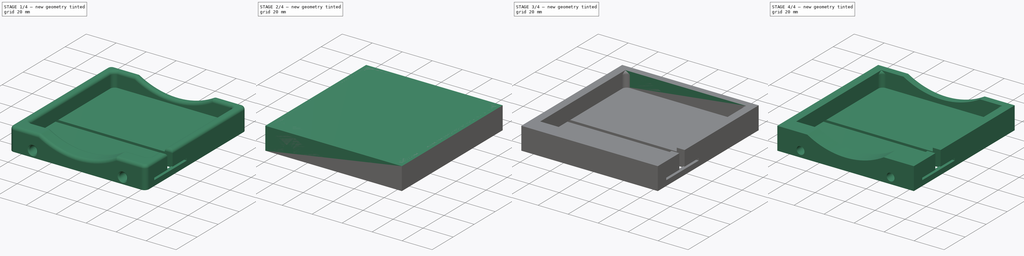
[diagram: build sequence overview — one tinted view per stage of 4, left to right]
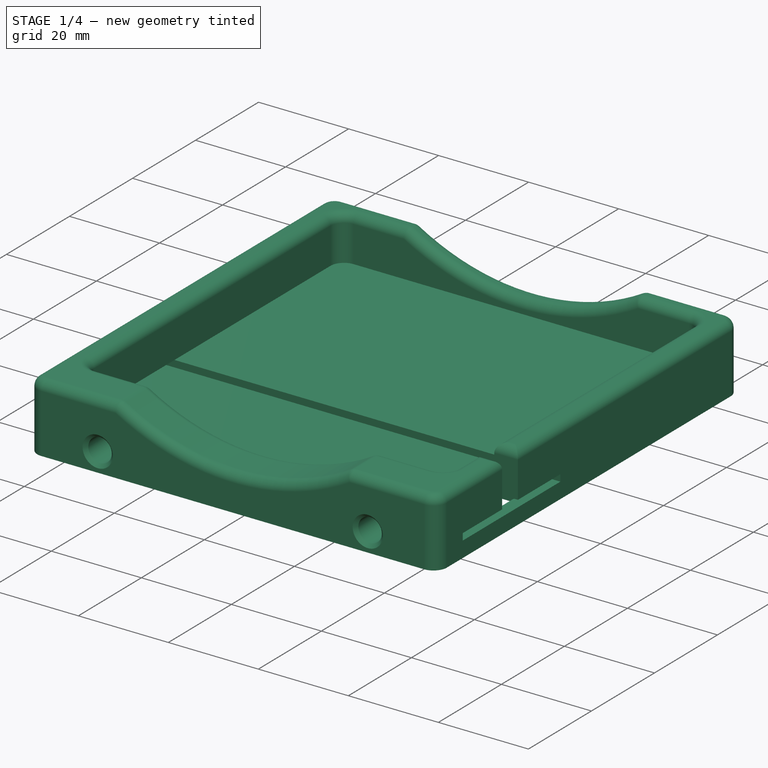
[diagram: stage 1 of 4 — iso view after this stage's code; geometry added in this stage tinted green]
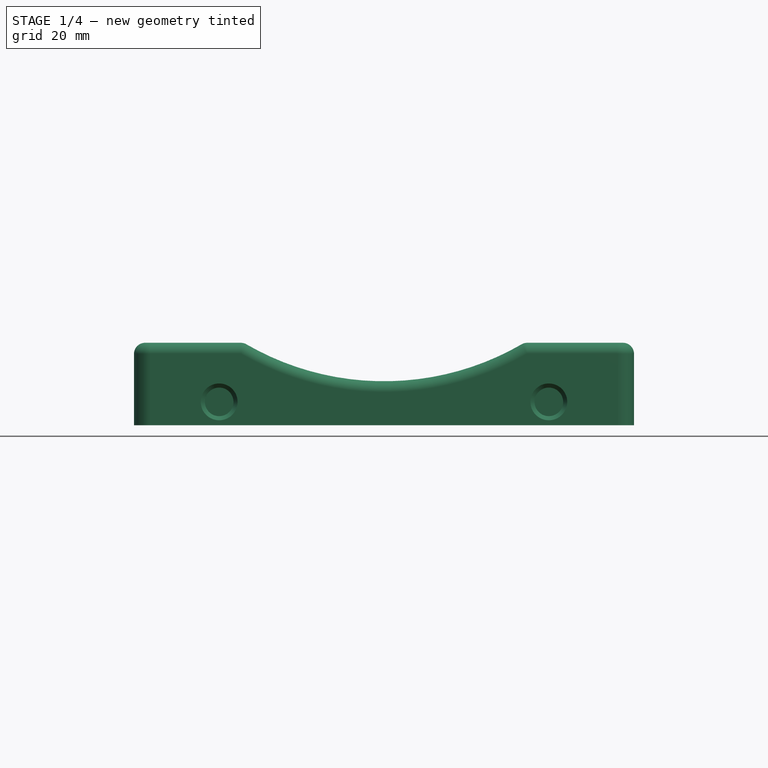
[diagram: stage 1 of 4 — front view after this stage's code; geometry added in this stage tinted green]
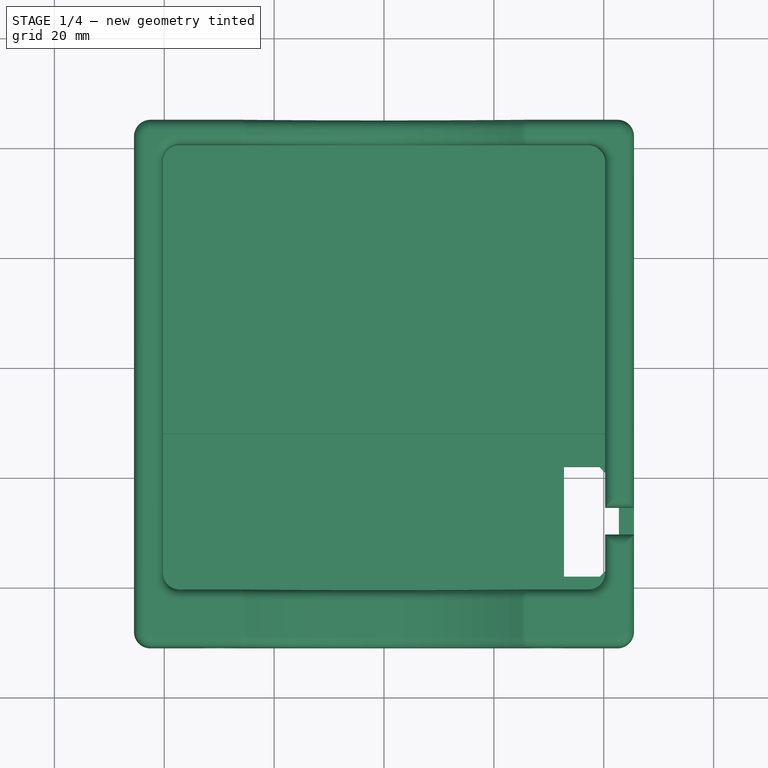
[diagram: stage 1 of 4 — top view after this stage's code; geometry added in this stage tinted green]
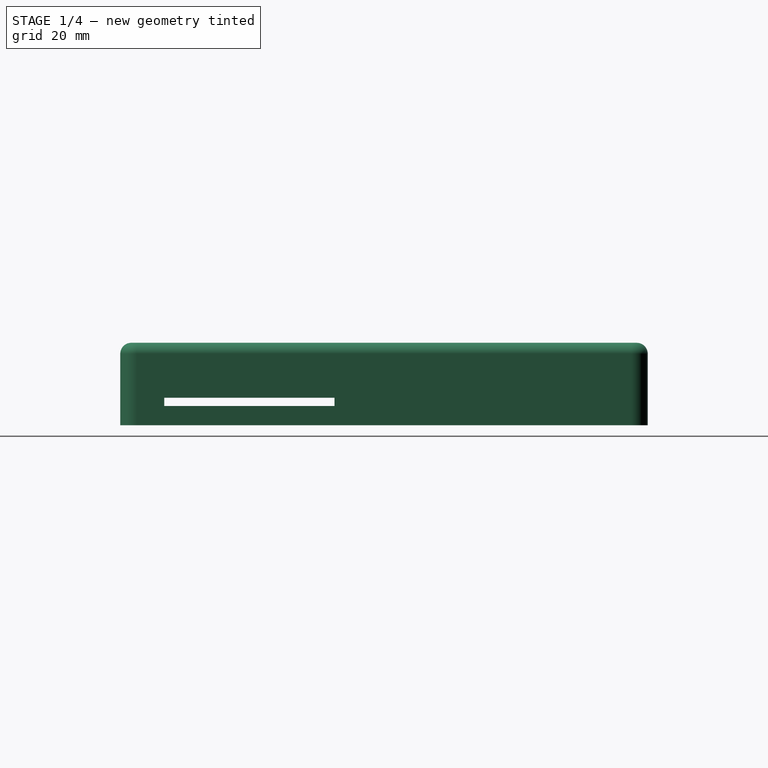
[diagram: stage 1 of 4 — right view after this stage's code; geometry added in this stage tinted green]
FCSTD DOCUMENT  (FreeCAD 0.17R7796 (Git))
Label: multi_length_fan_jig_80mm
License: CreativeCommons Attribution-ShareAlike
LicenseURL: http://creativecommons.org/licenses/by-sa/4.0/
objects: Sketcher::SketchObject×8, PartDesign::Pocket×6, PartDesign::Fillet×4, PartDesign::Pad×2, PartDesign::Body×1, Part::Feature×1, PartDesign::Chamfer×1
note: 31 computed .brp shape members not serialized (recipe doc carries the construction recipe); baked Part::Feature solids carry a one-line shape summary decoded from their .brp

FEATURE [PartDesign::Body] Body
  Model = -> [Sketch,Pad,Sketch001,Pocket,Sketch002,Pocket001,Sketch003,Pocket002,Sketch004,Pocket003,Sketch005,Pad001,Sketch006,Pocket004,Sketch007,Pocket005]
  Origin = -> BodyOrigin
  Tip = -> Pocket005
FEATURE [Part::Feature] Pocket005001  label="Pocket006"
  shape: bbox 91 x 96 x 15 mm, 41 faces (baked)
FEATURE [PartDesign::Fillet] Fillet
  Base = -> Pocket005001 [Edge30,Edge73,Edge6,Edge72,Edge69,Edge2,Edge76,Edge8]
  Radius = 3
FEATURE [PartDesign::Fillet] Fillet001
  Base = -> Fillet [Face5,Face26,Face36,Face6,Face7]
  Radius = 2
FEATURE [PartDesign::Chamfer] Chamfer
  Base = -> Fillet001 [Edge75,Edge74]
  Size = 0.75
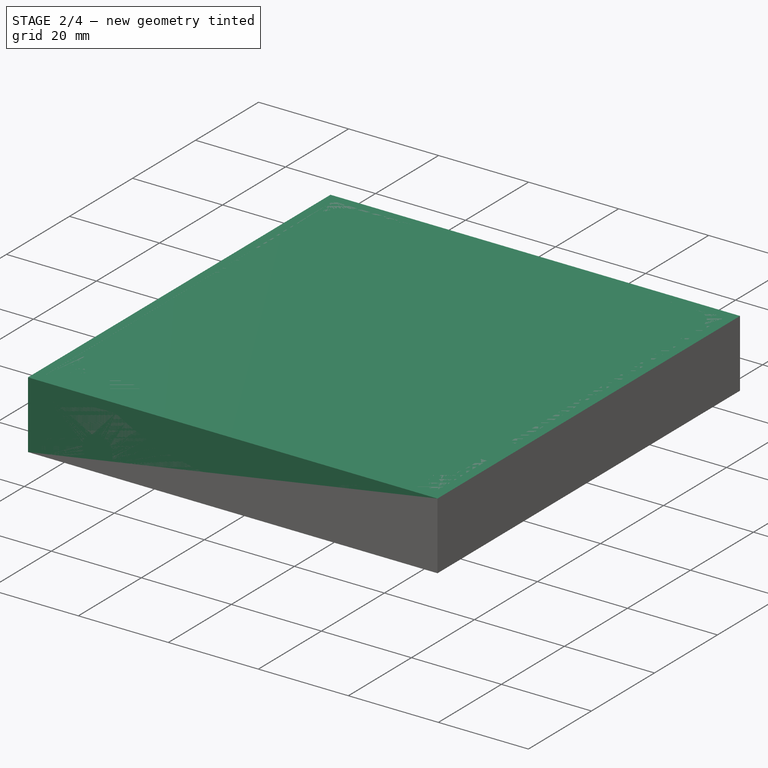
[diagram: stage 2 of 4 — iso view after this stage's code; geometry added in this stage tinted green]
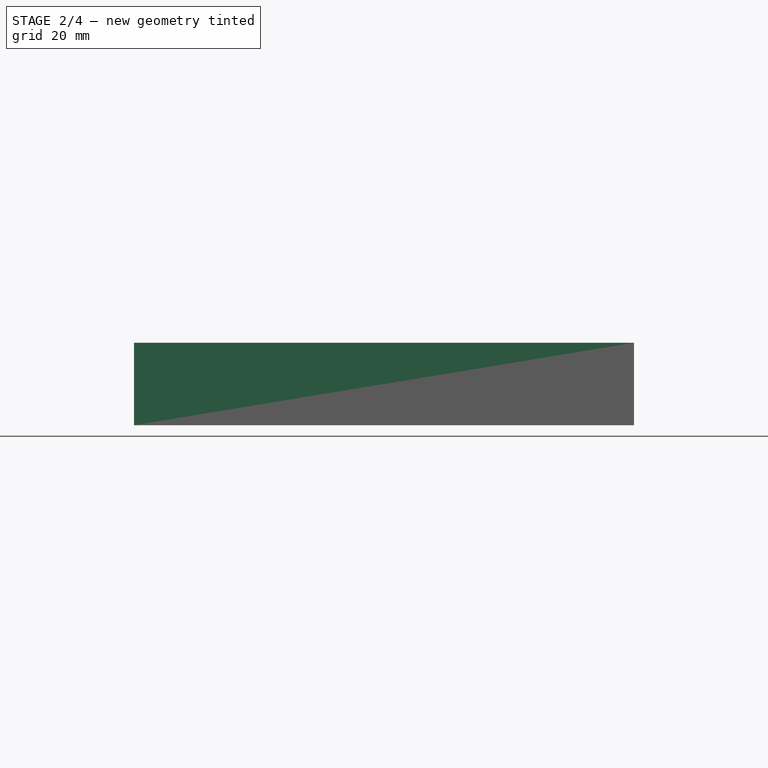
[diagram: stage 2 of 4 — front view after this stage's code; geometry added in this stage tinted green]
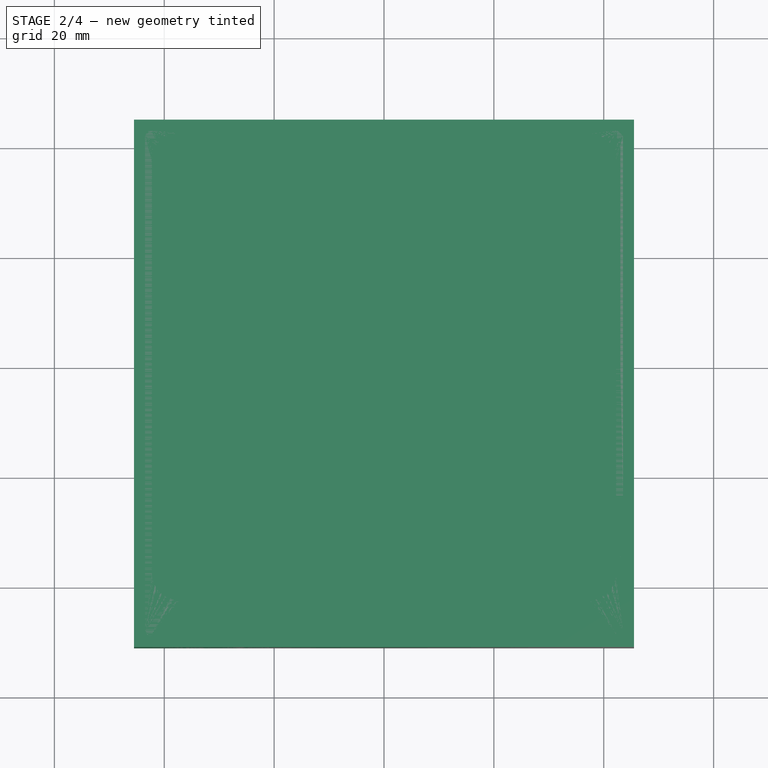
[diagram: stage 2 of 4 — top view after this stage's code; geometry added in this stage tinted green]
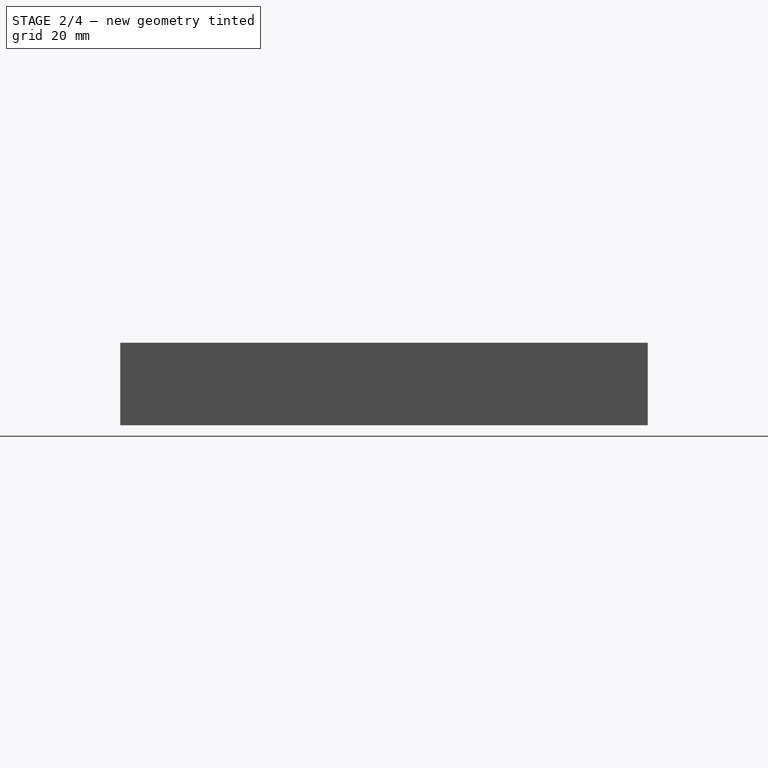
[diagram: stage 2 of 4 — right view after this stage's code; geometry added in this stage tinted green]
FEATURE [Sketcher::SketchObject] Sketch
  MapMode = 5
  Support = -> [XY_Plane]
  sketch-geometry (4):
    g0: LineSegment StartX=-45.5 StartY=45 StartZ=0 EndX=45.5 EndY=45 EndZ=0
    g1: LineSegment StartX=45.5 StartY=45 StartZ=0 EndX=45.5 EndY=-51 EndZ=0
    g2: LineSegment StartX=45.5 StartY=-51 StartZ=0 EndX=-45.5 EndY=-51 EndZ=0
    g3: LineSegment StartX=-45.5 StartY=-51 StartZ=0 EndX=-45.5 EndY=45 EndZ=0
  constraints (12):
    c: Coincident(g0,g1)
    c: Coincident(g1,g2)
    c: Coincident(g2,g3)
    c: Coincident(g3,g0)
    c: Horizontal(g0)
    c: Horizontal(g2)
    c: Vertical(g1)
    c: Vertical(g3)
    c: DistanceY(g3,g3) = 96
    c: DistanceX(g0,g0) = 91
    c: DistanceX(g0,g-1) = 45.5
    c: DistanceY(g-1,g0) = 45
FEATURE [PartDesign::Pad] Pad
  Length = 15
  Length2 = 100
  Profile = -> Sketch
  Type = 0
FEATURE [PartDesign::Fillet] Fillet002
  Base = -> Chamfer [Edge86,Edge104]
  Radius = 3
FEATURE [PartDesign::Fillet] Fillet003
  Base = -> Fillet002 [Edge35,Edge30,Edge22,Edge36,Edge43,Edge38]
  Radius = 1
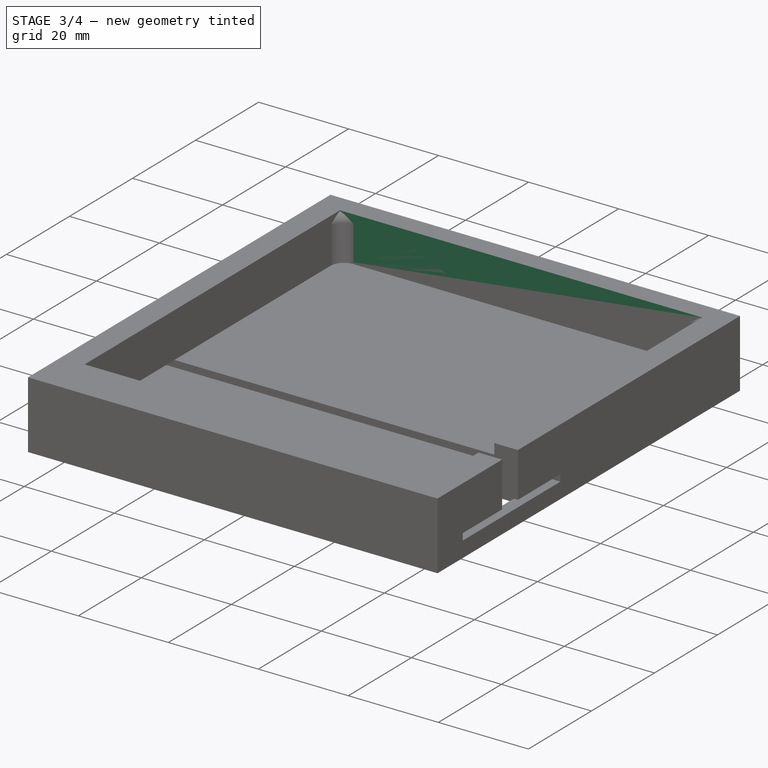
[diagram: stage 3 of 4 — iso view after this stage's code; geometry added in this stage tinted green]
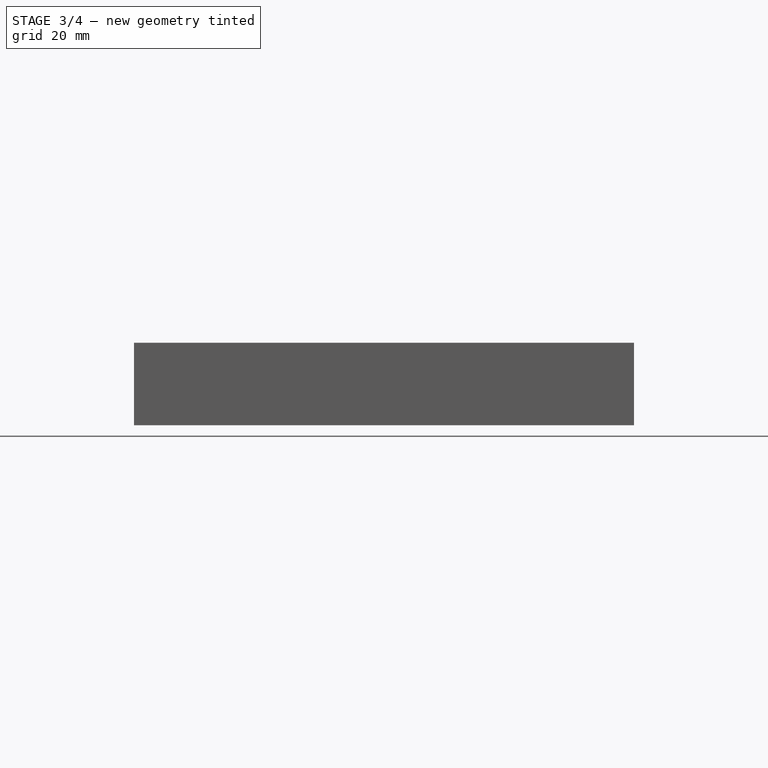
[diagram: stage 3 of 4 — front view after this stage's code; geometry added in this stage tinted green]
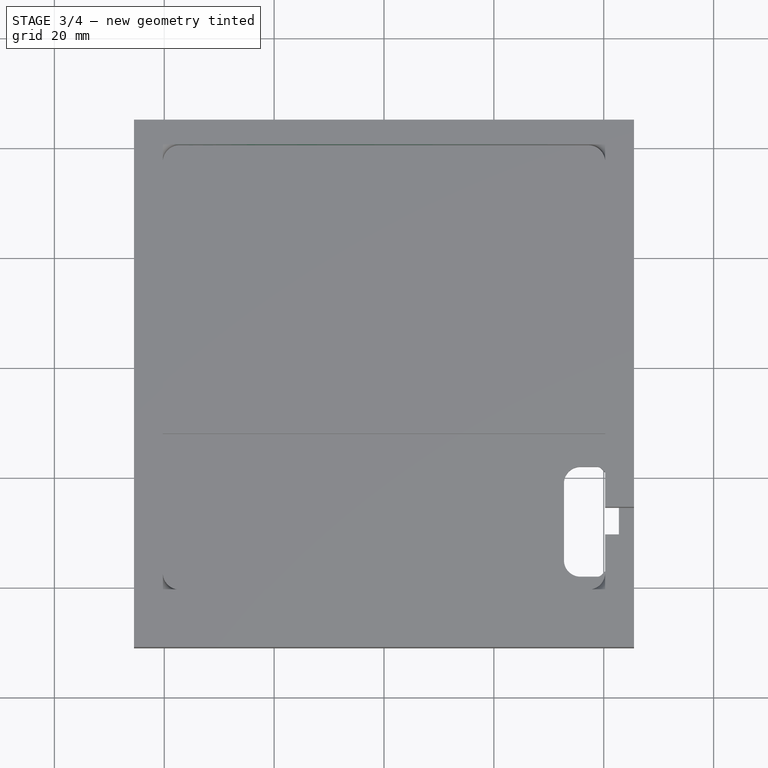
[diagram: stage 3 of 4 — top view after this stage's code; geometry added in this stage tinted green]
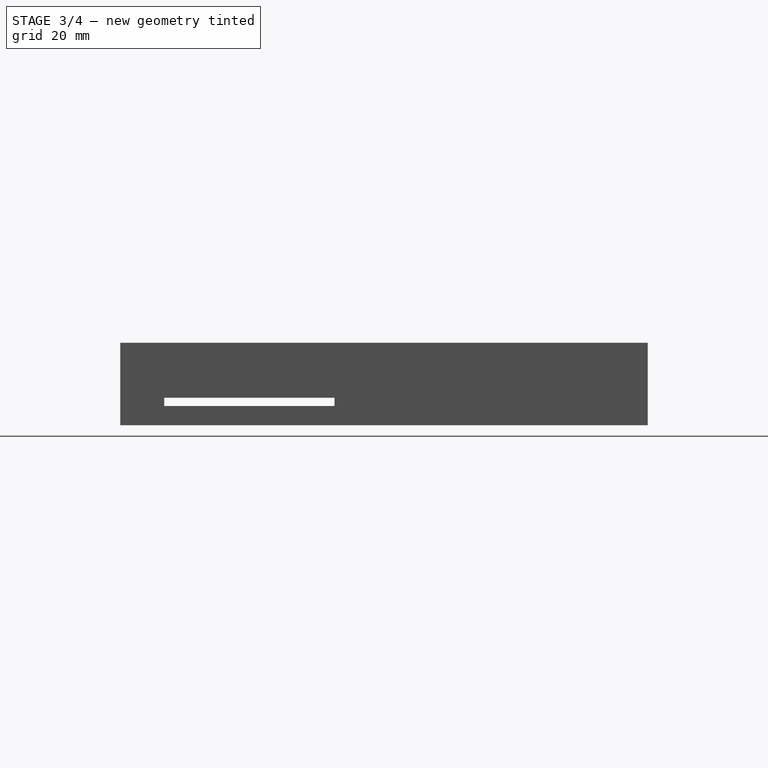
[diagram: stage 3 of 4 — right view after this stage's code; geometry added in this stage tinted green]
FEATURE [Sketcher::SketchObject] Sketch001
  MapMode = 5
  Placement = pos=(0,0,15) rot=(0,0,1;0rad)
  Support = -> [Pad]
  sketch-geometry (4):
    g0: LineSegment StartX=-40.25 StartY=40.5 StartZ=0 EndX=40.25 EndY=40.5 EndZ=0
    g1: LineSegment StartX=40.25 StartY=40.5 StartZ=0 EndX=40.25 EndY=-40.5 EndZ=0
    g2: LineSegment StartX=40.25 StartY=-40.5 StartZ=0 EndX=-40.25 EndY=-40.5 EndZ=0
    g3: LineSegment StartX=-40.25 StartY=-40.5 StartZ=0 EndX=-40.25 EndY=40.5 EndZ=0
  constraints (12):
    c: Coincident(g0,g1)
    c: Coincident(g1,g2)
    c: Coincident(g2,g3)
    c: Coincident(g3,g0)
    c: Horizontal(g0)
    c: Horizontal(g2)
    c: Vertical(g1)
    c: Vertical(g3)
    c: DistanceY(g3,g3) = 81
    c: DistanceX(g0,g0) = 80.5
    c: DistanceY(g-1,g0) = 40.5
    c: DistanceX(g0,g-1) = 40.25
FEATURE [PartDesign::Pocket] Pocket
  BaseFeature = -> Pad
  Length = 10
  Profile = -> Sketch001
  Type = 0
FEATURE [Sketcher::SketchObject] Sketch002
  ExternalGeometry = -> [Pocket]
  MapMode = 5
  Placement = pos=(0,0,15) rot=(0,0,1;0rad)
  Support = -> [Pocket]
  sketch-geometry (4):
    g0: LineSegment StartX=40.25 StartY=-25.5 StartZ=0 EndX=45.5 EndY=-25.5 EndZ=0
    g1: LineSegment StartX=45.5 StartY=-25.5 StartZ=0 EndX=45.5 EndY=-30.5 EndZ=0
    g2: LineSegment StartX=45.5 StartY=-30.5 StartZ=0 EndX=40.25 EndY=-30.5 EndZ=0
    g3: LineSegment StartX=40.25 StartY=-30.5 StartZ=0 EndX=40.25 EndY=-25.5 EndZ=0
  constraints (12):
    c: Coincident(g0,g1)
    c: Coincident(g1,g2)
    c: Coincident(g2,g3)
    c: Coincident(g3,g0)
    c: Horizontal(g0)
    c: Horizontal(g2)
    c: Vertical(g1)
    c: Vertical(g3)
    c: DistanceY(g1,g1) = 5
    c: DistanceY(g-3,g0) = 15
    c: PointOnObject(g2,g-4)
    c: PointOnObject(g1,g-5)
FEATURE [PartDesign::Pocket] Pocket001
  BaseFeature = -> Pocket
  Length = 10
  Profile = -> Sketch002
  Type = 0
FEATURE [Sketcher::SketchObject] Sketch003
  ExternalGeometry = -> [Pocket001]
  MapMode = 5
  Placement = pos=(45.5,0,0) rot=(0.57735,0.57735,0.57735;2.0944rad)
  Support = -> [Pocket001]
  sketch-geometry (4):
    g0: LineSegment StartX=-43 StartY=5 StartZ=0 EndX=-12 EndY=5 EndZ=0
    g1: LineSegment StartX=-12 StartY=5 StartZ=0 EndX=-12 EndY=3.5 EndZ=0
    g2: LineSegment StartX=-12 StartY=3.5 StartZ=0 EndX=-43 EndY=3.5 EndZ=0
    g3: LineSegment StartX=-43 StartY=3.5 StartZ=0 EndX=-43 EndY=5 EndZ=0
  constraints (12):
    c: Coincident(g0,g1)
    c: Coincident(g1,g2)
    c: Coincident(g2,g3)
    c: Coincident(g3,g0)
    c: Horizontal(g0)
    c: Horizontal(g2)
    c: Vertical(g1)
    c: Vertical(g3)
    c: PointOnObject(g-3,g0)
    c: DistanceY(g3,g3) = 1.5
    c: DistanceX(g2,g2) = 31
    c: DistanceX(g1,g-1) = 12
FEATURE [PartDesign::Pocket] Pocket002
  BaseFeature = -> Pocket001
  Length = 5
  Profile = -> Sketch003
  Type = 1
FEATURE [Sketcher::SketchObject] Sketch004
  ExternalGeometry = -> [Pocket002]
  MapMode = 5
  Placement = pos=(0,0,0) rot=(1,0,0;3.14159rad)
  Support = -> [Pocket002]
  sketch-geometry (6):
    g0: LineSegment StartX=42.75 StartY=18 StartZ=0 EndX=32.75 EndY=18 EndZ=0
    g1: LineSegment StartX=32.75 StartY=18 StartZ=0 EndX=32.75 EndY=38 EndZ=0
    g2: LineSegment StartX=32.75 StartY=38 StartZ=0 EndX=42.75 EndY=38 EndZ=0
    g3: LineSegment StartX=42.75 StartY=38 StartZ=0 EndX=42.75 EndY=18 EndZ=0
    g4: LineSegment [constr] StartX=40.25 StartY=38 StartZ=0 EndX=40.25 EndY=30.5 EndZ=0
    g5: LineSegment [constr] StartX=40.25 StartY=25.5 StartZ=0 EndX=40.25 EndY=18 EndZ=0
  constraints (18):
    c: Coincident(g0,g1)
    c: Coincident(g1,g2)
    c: Coincident(g2,g3)
    c: Coincident(g3,g0)
    c: Horizontal(g0)
    c: Horizontal(g2)
    c: Vertical(g1)
    c: Vertical(g3)
    c: DistanceX(g2,g2) = 10
    c: DistanceX(g-3,g2) = 2.5
    c: DistanceY(g1,g1) = 20
    c: Vertical(g4)
    c: Vertical(g5)
    c: Equal(g5,g4)
    c: Coincident(g4,g-3)
    c: Coincident(g5,g-4)
    c: PointOnObject(g5,g0)
    c: PointOnObject(g4,g2)
FEATURE [PartDesign::Pocket] Pocket003
  BaseFeature = -> Pocket002
  Length = 3.5
  Profile = -> Sketch004
  Type = 0
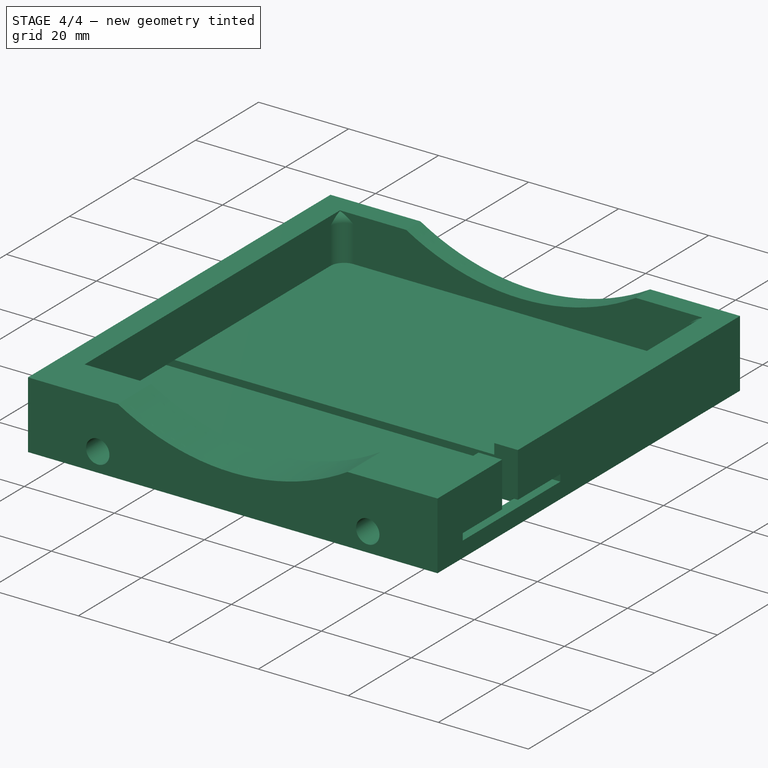
[diagram: stage 4 of 4 — iso view after this stage's code; geometry added in this stage tinted green]
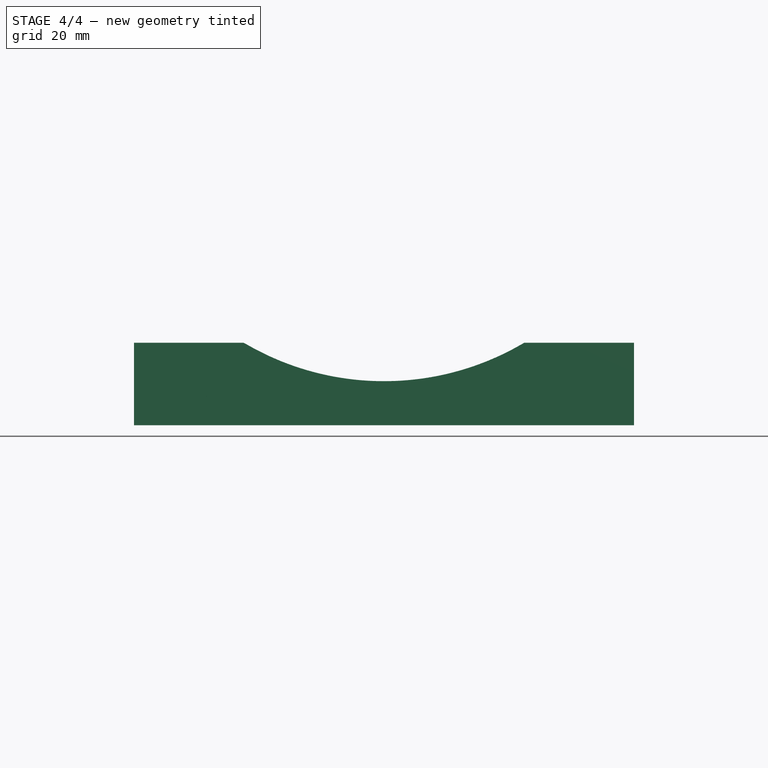
[diagram: stage 4 of 4 — front view after this stage's code; geometry added in this stage tinted green]
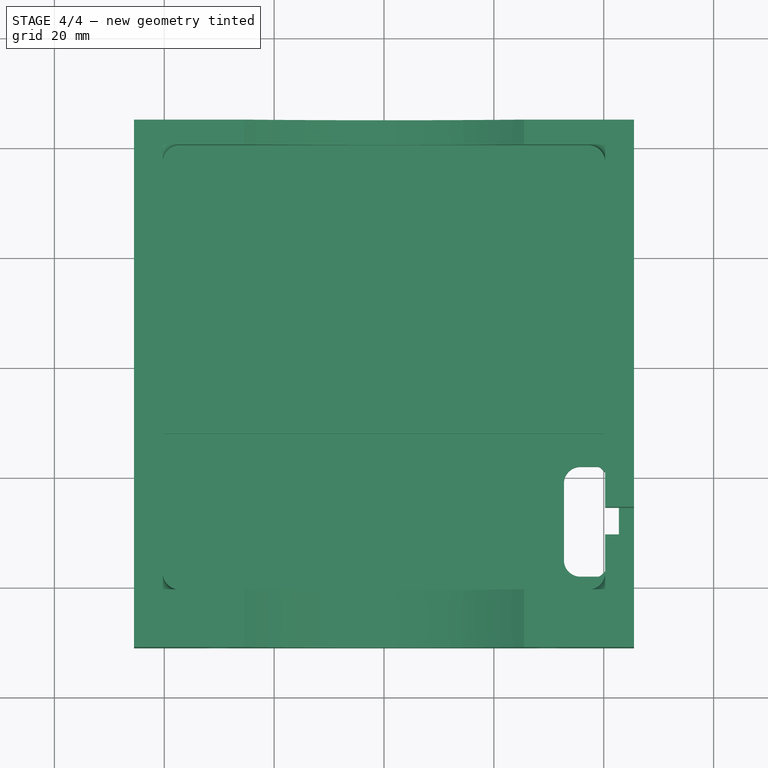
[diagram: stage 4 of 4 — top view after this stage's code; geometry added in this stage tinted green]
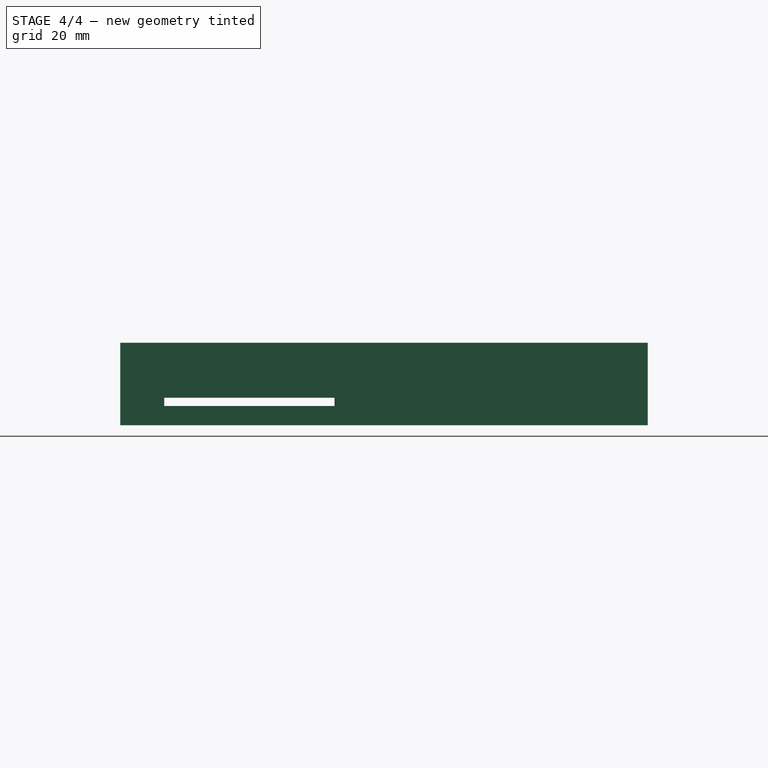
[diagram: stage 4 of 4 — right view after this stage's code; geometry added in this stage tinted green]
FEATURE [Sketcher::SketchObject] Sketch005
  ExternalGeometry = -> [Pocket003]
  MapMode = 5
  Placement = pos=(0,0,0) rot=(1,0,0;3.14159rad)
  Support = -> [Pocket003]
  sketch-geometry (6):
    g0: LineSegment StartX=39.25 StartY=38 StartZ=0 EndX=40.25 EndY=37 EndZ=0
    g1: LineSegment StartX=40.25 StartY=37 StartZ=0 EndX=41.25 EndY=38 EndZ=0
    g2: LineSegment StartX=41.25 StartY=38 StartZ=0 EndX=39.25 EndY=38 EndZ=0
    g3: LineSegment StartX=40.25 StartY=19 StartZ=0 EndX=39.25 EndY=18 EndZ=0
    g4: LineSegment StartX=39.25 StartY=18 StartZ=0 EndX=41.25 EndY=18 EndZ=0
    g5: LineSegment StartX=41.25 StartY=18 StartZ=0 EndX=40.25 EndY=19 EndZ=0
  constraints (18):
    c: Coincident(g0,g1)
    c: Coincident(g1,g2)
    c: Coincident(g3,g4)
    c: Coincident(g4,g5)
    c: Coincident(g3,g5)
    c: Coincident(g0,g2)
    c: Equal(g0,g1)
    c: Equal(g1,g5)
    c: Equal(g5,g3)
    c: Parallel(g2,g4)
    c: Horizontal(g2)
    c: PointOnObject(g0,g-3)
    c: PointOnObject(g3,g-4)
    c: DistanceX(g3,g4) = 2
    c: DistanceX(g0,g1) = 2
    c: PointOnObject(g0,g-5)
    c: PointOnObject(g3,g-6)
    c: DistanceY(g0,g-3) = 1
FEATURE [PartDesign::Pad] Pad001
  BaseFeature = -> Pocket003
  Length = 3.5
  Length2 = 100
  Profile = -> Sketch005
  Reversed = true
  Type = 0
FEATURE [Sketcher::SketchObject] Sketch006
  ExternalGeometry = -> [Pad001]
  MapMode = 5
  Placement = pos=(0,-51,0) rot=(1,0,0;1.5708rad)
  Support = -> [Pad001]
  sketch-geometry (2):
    g0: Circle CenterX=-30 CenterY=4.25 CenterZ=0 NormalX=0 NormalY=0 NormalZ=1 Radius=2.6
    g1: Circle CenterX=30 CenterY=4.25 CenterZ=0 NormalX=0 NormalY=0 NormalZ=1 Radius=2.6
  constraints (6):
    c: Radius(g0) = 2.6
    c: Equal(g0,g1)
    c: DistanceY(g1,g0) = 0
    c: DistanceY(g1,g-3) = 0.75
    c: DistanceX(g0,g1) = 60
    c: DistanceX(g-1,g1) = 30
FEATURE [PartDesign::Pocket] Pocket004
  BaseFeature = -> Pad001
  Length = 9
  Profile = -> Sketch006
  Type = 0
FEATURE [Sketcher::SketchObject] Sketch007
  ExternalGeometry = -> [Pocket004]
  MapMode = 5
  Placement = pos=(0,-51,0) rot=(1,0,0;1.5708rad)
  Support = -> [Pocket004]
  sketch-geometry (3):
    g0: ArcOfCircle CenterX=0 CenterY=58 CenterZ=0 NormalX=0 NormalY=0 NormalZ=1 Radius=50 StartAngle=3.78509 EndAngle=5.63968
    g1: LineSegment StartX=-40 StartY=28 StartZ=0 EndX=40 EndY=28 EndZ=0
    g2: LineSegment [constr] StartX=0 StartY=15 StartZ=0 EndX=0 EndY=8 EndZ=0
  constraints (11):
    c: PointOnObject(g0,g-2)
    c: Coincident(g0,g1)
    c: Coincident(g1,g0)
    c: Horizontal(g1)
    c: Radius(g0) = 50
    c: Vertical(g2)
    c: PointOnObject(g2,g0)
    c: PointOnObject(g2,g-3)
    c: DistanceY(g2,g2) = 7
    c: PointOnObject(g2,g-2)
    c: DistanceX(g1,g1) = 80
FEATURE [PartDesign::Pocket] Pocket005
  BaseFeature = -> Pocket004
  Length = 5
  Profile = -> Sketch007
  Type = 1
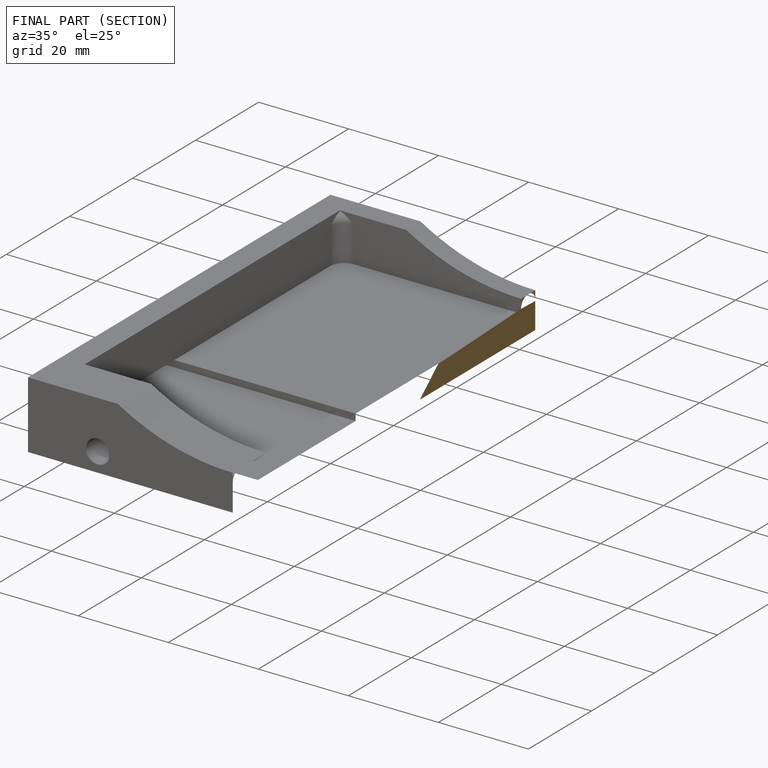
[diagram: finished part — half-section view (interior)]
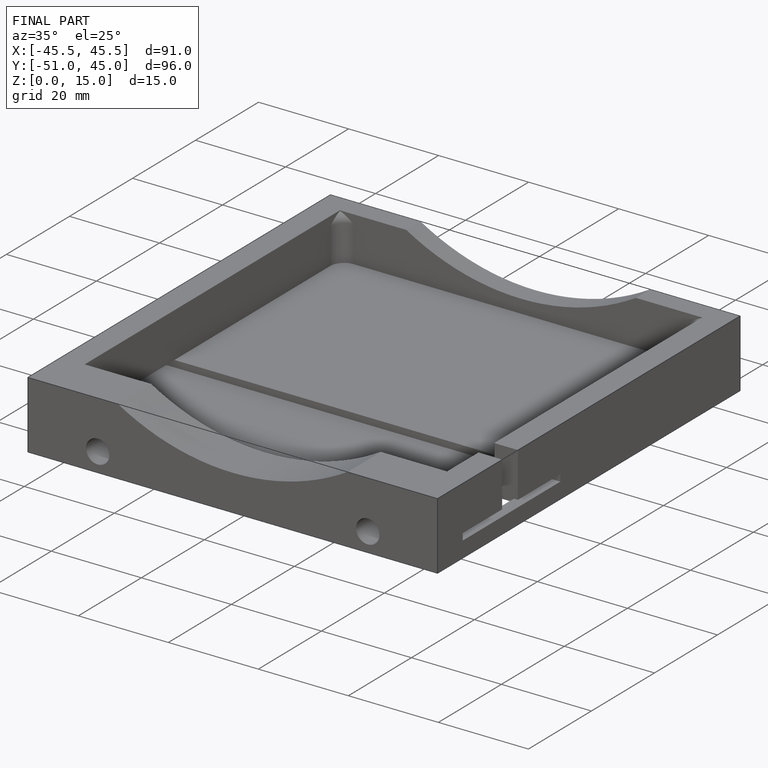
[diagram: finished part — iso view with bounding-box wireframe]
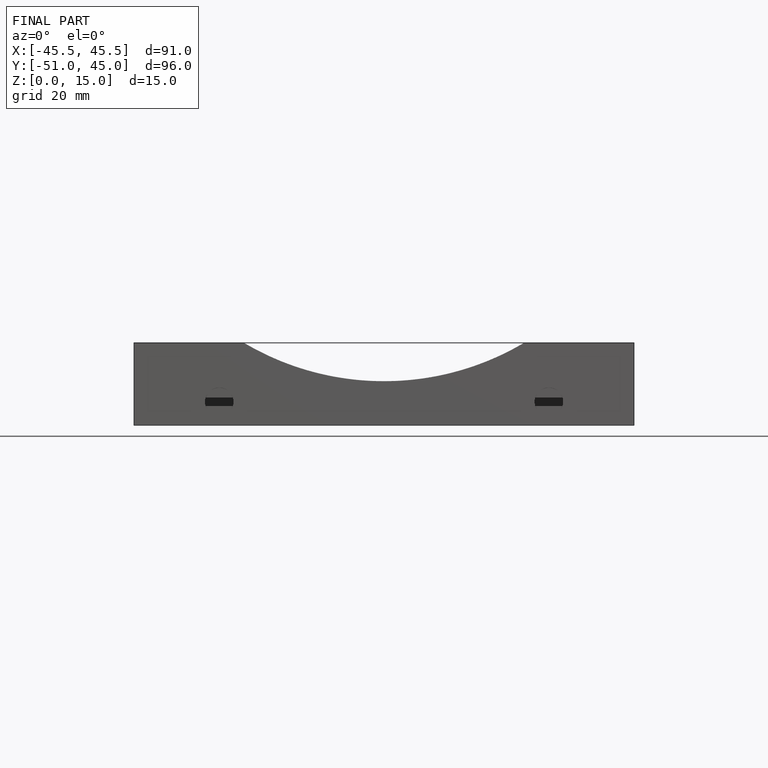
[diagram: finished part — front view with bounding-box wireframe]
